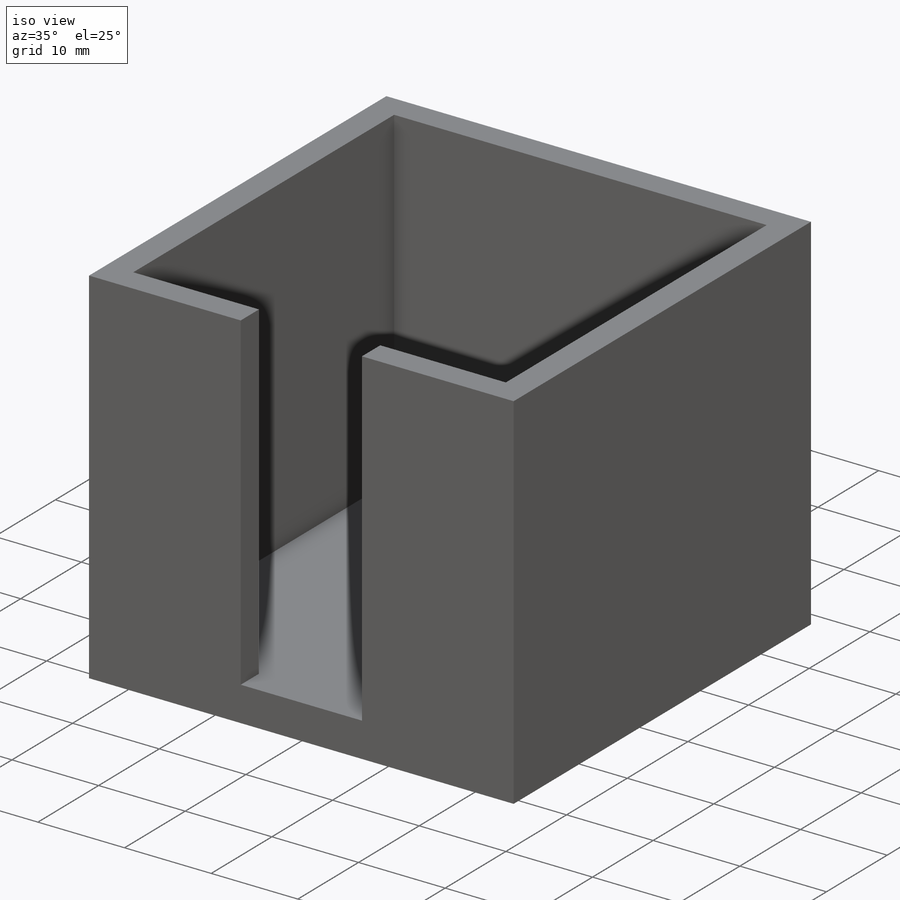
[diagram: iso view]
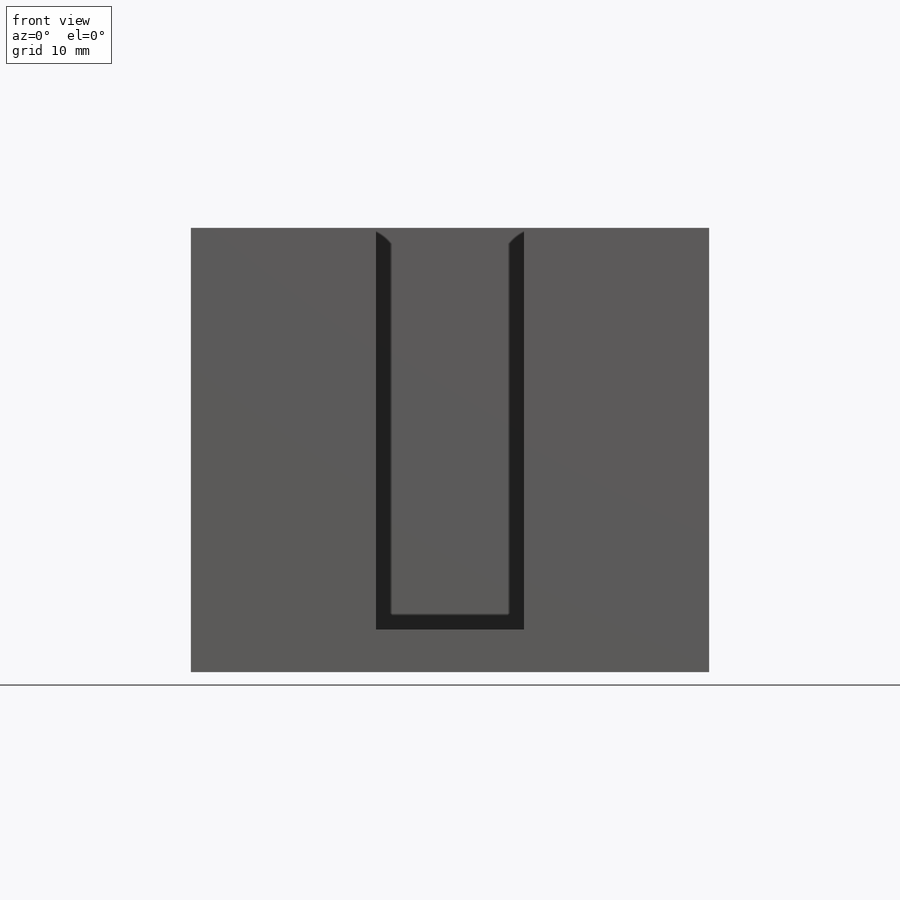
[diagram: front view]
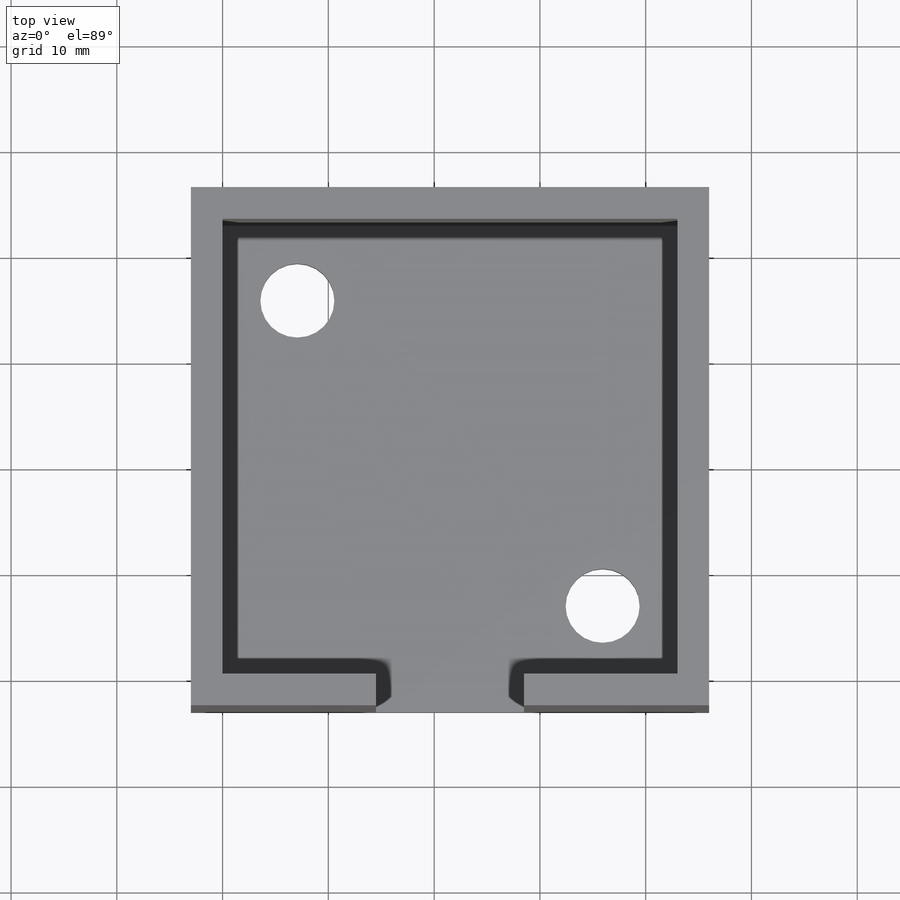
[diagram: top view]
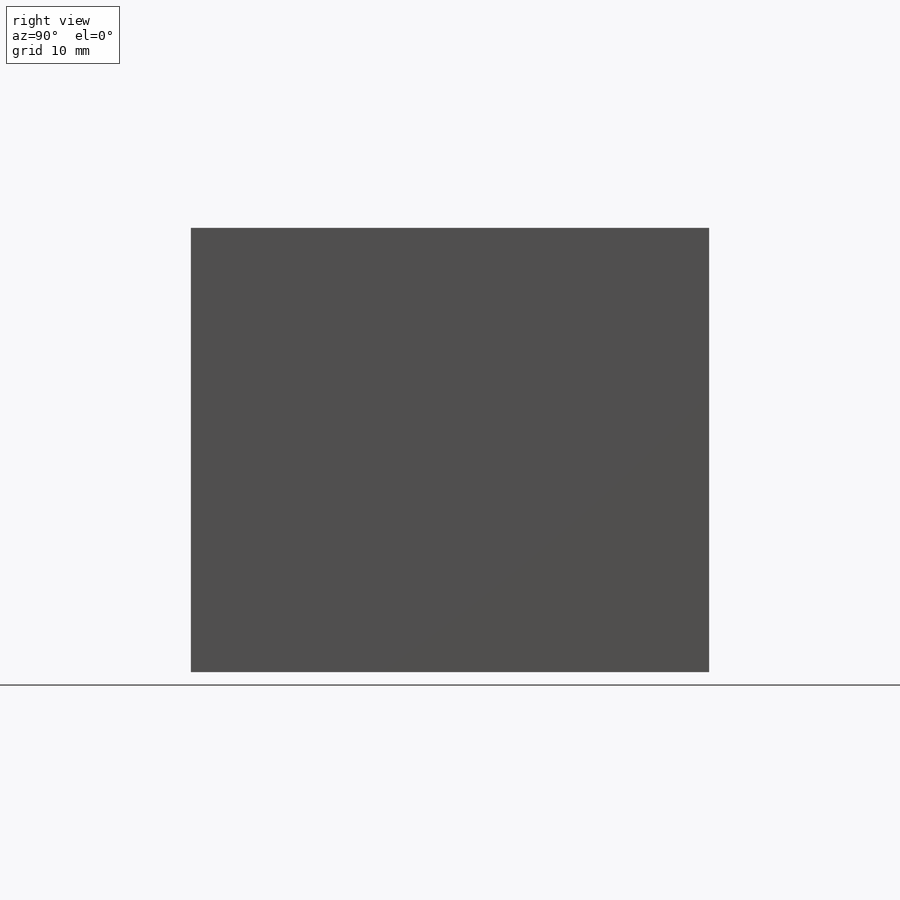
[diagram: right view]
SOLIDWORKS PART (.sldprt)
format: sldprt  version: not decoded by parser v0  size: 205,824 bytes
history: native  units: mm
features: sketch x4, plane x3, extrude x3, material x1, cut_extrude x1 (+9 scaffold rows collapsed)
feature tree (21):
  scaffold x9  (default folders/planes/origin — collapsed)
  material  "Matériau <non spécifié>"
  plane  "Plan de face"
  plane  "Plan de dessus"
  plane  "Plan de droite"
  sketch  "Esquisse1"  dims[D5=7.0mm D6=7.0mm D1=43.0mm D2=43.0mm D3=10.0mm D4=10.0mm D7=3.0mm D8=3.0mm D9=3.0mm D10=3.0mm]
  extrude  "Boss.-Extru.1"  Depth=4mm
  sketch  "Esquisse2"  dims[D1=3.0mm D2=3.0mm D3=3.0mm D4=3.0mm]
  extrude  "Boss.-Extru.2"  Depth=38mm
  sketch  "Esquisse3"  dims[D1=17.5mm D2=17.5mm]
  cut_extrude  "Enlèv. mat.-Extru.1"  Depth=3mm
  sketch  "Esquisse4"
  extrude  "Boss.-Extru.3"  Depth=3mm
decode coverage: 7 of 8 modeling features carry decoded parameters
note: suppression state not decoded; provenance and decode notes live in map.json
